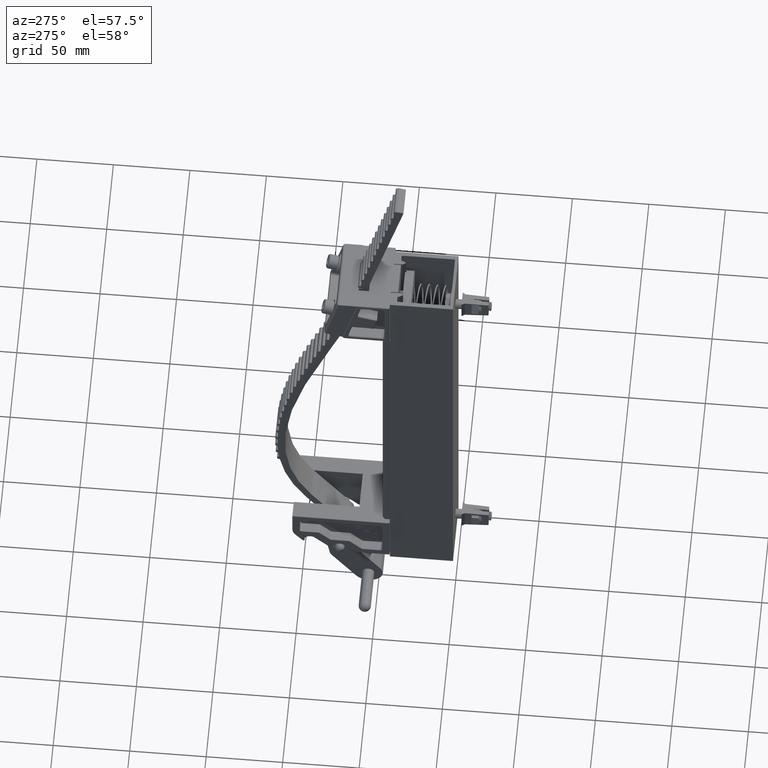
[diagram: clean part render]
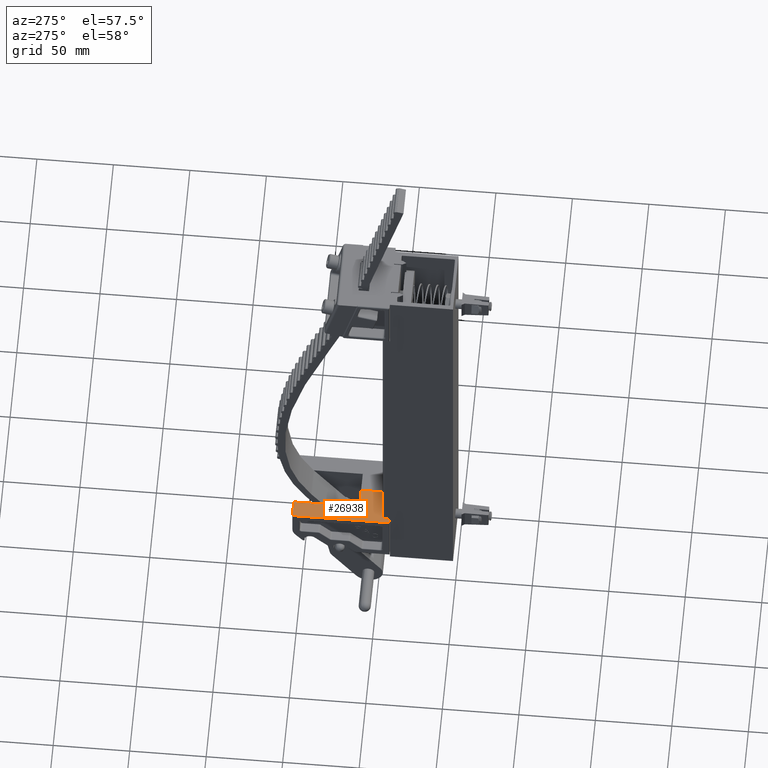
[diagram: same view with one face highlighted and labeled with its STEP entity id]
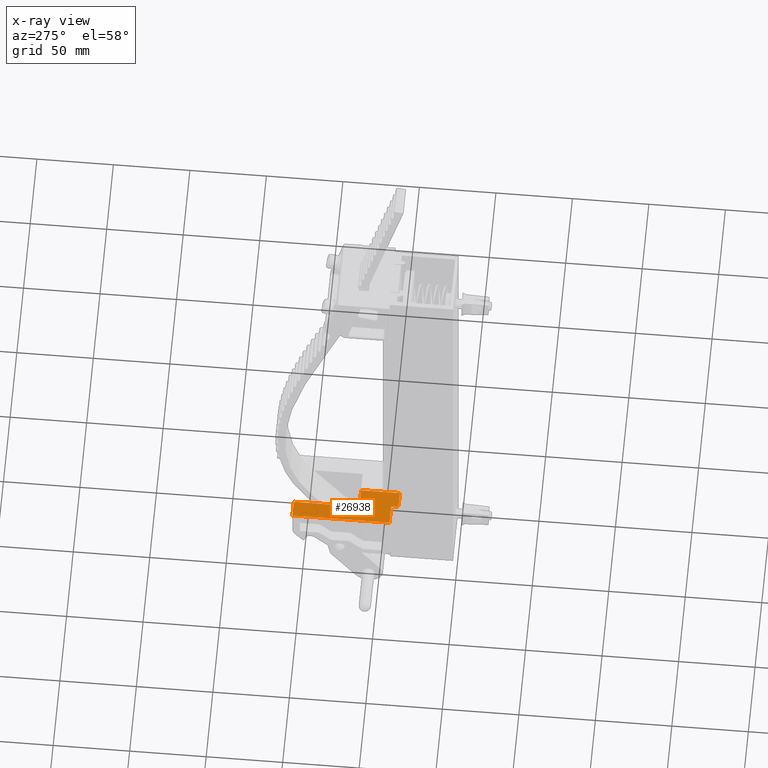
[diagram: x-ray of the same camera — body ghosted, the highlighted face saturated]
A machine part, auxiliary view. The second image highlights one B-rep face of the part: STEP entity #26938.
The next image is the same camera in x-ray: the body ghosted, the highlighted face saturated — about 0% of this face is hidden behind the body in this view.
In plain terms, the highlighted planar face has unit normal (-0, -0, -1).
Its self-contained STEP definition (entity closure, byte-faithful):
#565 = DIRECTION ( 'NONE',  ( -0.0000000000000000000, -1.000000000000000000, -0.0000000000000000000 ) ) ;
#806 = CARTESIAN_POINT ( 'NONE',  ( 0.2561011630004074200, 2.208377944183601600, 0.9174999999999999800 ) ) ;
#1160 = CARTESIAN_POINT ( 'NONE',  ( 0.2561011630004074200, -0.4481220558163985800, 0.4249999999999999900 ) ) ;
#2063 = EDGE_CURVE ( 'NONE', #3888, #40314, #4452, .T. ) ;
#2661 = VERTEX_POINT ( 'NONE', #7234 ) ;
#2929 = CARTESIAN_POINT ( 'NONE',  ( 0.2561011630004074200, -0.2916220558163987700, 0.4249999999999999900 ) ) ;
#3888 = VERTEX_POINT ( 'NONE', #11519 ) ;
#4048 = DIRECTION ( 'NONE',  ( 0.0000000000000000000, 0.0000000000000000000, 1.000000000000000000 ) ) ;
#4199 = ORIENTED_EDGE ( 'NONE', *, *, #23514, .F. ) ;
#4201 = LINE ( 'NONE', #2929, #12269 ) ;
#4452 = LINE ( 'NONE', #24322, #40230 ) ;
#5958 = LINE ( 'NONE', #8804, #15178 ) ;
#7206 = LINE ( 'NONE', #15324, #14262 ) ;
#7234 = CARTESIAN_POINT ( 'NONE',  ( 0.2561011630004074200, -0.2916220558163988300, 0.9175000000000000900 ) ) ;
#7804 = CARTESIAN_POINT ( 'NONE',  ( 0.2561011630004074200, -0.4481220558163996300, 0.4249999999999988800 ) ) ;
#7964 = VERTEX_POINT ( 'NONE', #40258 ) ;
#8804 = CARTESIAN_POINT ( 'NONE',  ( 0.2561011630004074200, -0.4791220558163987700, 0.9375000000000000000 ) ) ;
#8819 = LINE ( 'NONE', #41304, #28385 ) ;
#10535 = VERTEX_POINT ( 'NONE', #1160 ) ;
#10788 = ORIENTED_EDGE ( 'NONE', *, *, #2063, .F. ) ;
#11246 = ORIENTED_EDGE ( 'NONE', *, *, #43188, .F. ) ;
#11249 = EDGE_CURVE ( 'NONE', #41307, #34612, #5958, .T. ) ;
#11427 = CARTESIAN_POINT ( 'NONE',  ( 0.2561011630004074200, -0.4791220558163987700, 0.4249999999999999900 ) ) ;
#11519 = CARTESIAN_POINT ( 'NONE',  ( 0.2561011630004074200, 0.5208779441836012300, 0.5000000000000000000 ) ) ;
#12004 = CARTESIAN_POINT ( 'NONE',  ( 0.2561011630004074200, 2.208377944183601600, 0.0000000000000000000 ) ) ;
#12269 = VECTOR ( 'NONE', #27194, 39.37007874015748100 ) ;
#12438 = CARTESIAN_POINT ( 'NONE',  ( 0.2561011630004074200, -0.4791220558163987700, 0.3939999999999994100 ) ) ;
#14200 = EDGE_LOOP ( 'NONE', ( #18834, #26438, #10788, #22050, #25414, #19087, #11246, #4199, #41554 ) ) ;
#14262 = VECTOR ( 'NONE', #32601, 39.37007874015748100 ) ;
#14331 = CARTESIAN_POINT ( 'NONE',  ( 0.2561011630004074200, -0.2916220558163986600, 0.9174999999999999800 ) ) ;
#14349 = DIRECTION ( 'NONE',  ( -1.000000000000000000, 0.0000000000000000000, 0.0000000000000000000 ) ) ;
#15178 = VECTOR ( 'NONE', #40191, 39.37007874015748100 ) ;
#15324 = CARTESIAN_POINT ( 'NONE',  ( 0.2561011630004074200, 2.208377944183601600, 0.5000000000000002200 ) ) ;
#16654 = FACE_OUTER_BOUND ( 'NONE', #14200, .T. ) ;
#17048 = DIRECTION ( 'NONE',  ( -0.0000000000000000000, -0.0000000000000000000, -1.000000000000000000 ) ) ;
#17873 = CARTESIAN_POINT ( 'NONE',  ( 0.2561011630004074200, 0.5208779441836012300, 0.0000000000000000000 ) ) ;
#18834 = ORIENTED_EDGE ( 'NONE', *, *, #11249, .T. ) ;
#19087 = ORIENTED_EDGE ( 'NONE', *, *, #39277, .T. ) ;
#19104 = VECTOR ( 'NONE', #565, 39.37007874015748100 ) ;
#19613 = CARTESIAN_POINT ( 'NONE',  ( 0.2561011630004074200, -0.2916220558163987700, 0.4249999999999999900 ) ) ;
#20100 = VECTOR ( 'NONE', #36448, 39.37007874015748100 ) ;
#20704 = VECTOR ( 'NONE', #35746, 39.37007874015748100 ) ;
#21176 = LINE ( 'NONE', #12004, #20100 ) ;
#22050 = ORIENTED_EDGE ( 'NONE', *, *, #38499, .F. ) ;
#22132 = EDGE_CURVE ( 'NONE', #38392, #7964, #8819, .T. ) ;
#22624 = LINE ( 'NONE', #7804, #31825 ) ;
#23514 = EDGE_CURVE ( 'NONE', #10535, #30748, #39125, .T. ) ;
#24322 = CARTESIAN_POINT ( 'NONE',  ( 0.2561011630004074200, 0.5208779441836012300, 0.5000000000000000000 ) ) ;
#24849 = CARTESIAN_POINT ( 'NONE',  ( 0.2561011630004074200, 2.208377944183601600, 0.9375000000000000000 ) ) ;
#25414 = ORIENTED_EDGE ( 'NONE', *, *, #22132, .F. ) ;
#26438 = ORIENTED_EDGE ( 'NONE', *, *, #30134, .T. ) ;
#26938 = ADVANCED_FACE ( 'NONE', ( #16654 ), #41924, .F. ) ;
#27012 = EDGE_CURVE ( 'NONE', #10535, #41307, #22624, .T. ) ;
#27194 = DIRECTION ( 'NONE',  ( 0.0000000000000000000, -1.332608777397201500E-016, 1.000000000000000000 ) ) ;
#28338 = LINE ( 'NONE', #14331, #19104 ) ;
#28385 = VECTOR ( 'NONE', #17048, 39.37007874015748100 ) ;
#28612 = DIRECTION ( 'NONE',  ( -0.0000000000000000000, -0.7071067811865435800, -0.7071067811865513500 ) ) ;
#30134 = EDGE_CURVE ( 'NONE', #34612, #40314, #21176, .T. ) ;
#30748 = VERTEX_POINT ( 'NONE', #19613 ) ;
#31825 = VECTOR ( 'NONE', #28612, 39.37007874015748900 ) ;
#32601 = DIRECTION ( 'NONE',  ( 0.0000000000000000000, -1.000000000000000000, -1.618872885134378000E-016 ) ) ;
#34612 = VERTEX_POINT ( 'NONE', #40793 ) ;
#34737 = DIRECTION ( 'NONE',  ( 0.0000000000000000000, 0.0000000000000000000, -1.000000000000000000 ) ) ;
#35555 = AXIS2_PLACEMENT_3D ( 'NONE', #24849, #14349, #4048 ) ;
#35746 = DIRECTION ( 'NONE',  ( 0.0000000000000000000, 1.000000000000000000, 0.0000000000000000000 ) ) ;
#36448 = DIRECTION ( 'NONE',  ( 0.0000000000000000000, 1.000000000000000000, 0.0000000000000000000 ) ) ;
#38392 = VERTEX_POINT ( 'NONE', #806 ) ;
#38499 = EDGE_CURVE ( 'NONE', #7964, #3888, #7206, .T. ) ;
#39125 = LINE ( 'NONE', #11427, #20704 ) ;
#39277 = EDGE_CURVE ( 'NONE', #38392, #2661, #28338, .T. ) ;
#40191 = DIRECTION ( 'NONE',  ( -0.0000000000000000000, -0.0000000000000000000, -1.000000000000000000 ) ) ;
#40230 = VECTOR ( 'NONE', #34737, 39.37007874015748100 ) ;
#40258 = CARTESIAN_POINT ( 'NONE',  ( 0.2561011630004074200, 2.208377944183601600, 0.5000000000000002200 ) ) ;
#40314 = VERTEX_POINT ( 'NONE', #17873 ) ;
#40793 = CARTESIAN_POINT ( 'NONE',  ( 0.2561011630004074200, -0.4791220558163987700, 0.0000000000000000000 ) ) ;
#41304 = CARTESIAN_POINT ( 'NONE',  ( 0.2561011630004074200, 2.208377944183601600, 0.9375000000000000000 ) ) ;
#41307 = VERTEX_POINT ( 'NONE', #12438 ) ;
#41554 = ORIENTED_EDGE ( 'NONE', *, *, #27012, .T. ) ;
#41924 = PLANE ( 'NONE',  #35555 ) ;
#43188 = EDGE_CURVE ( 'NONE', #30748, #2661, #4201, .T. ) ;